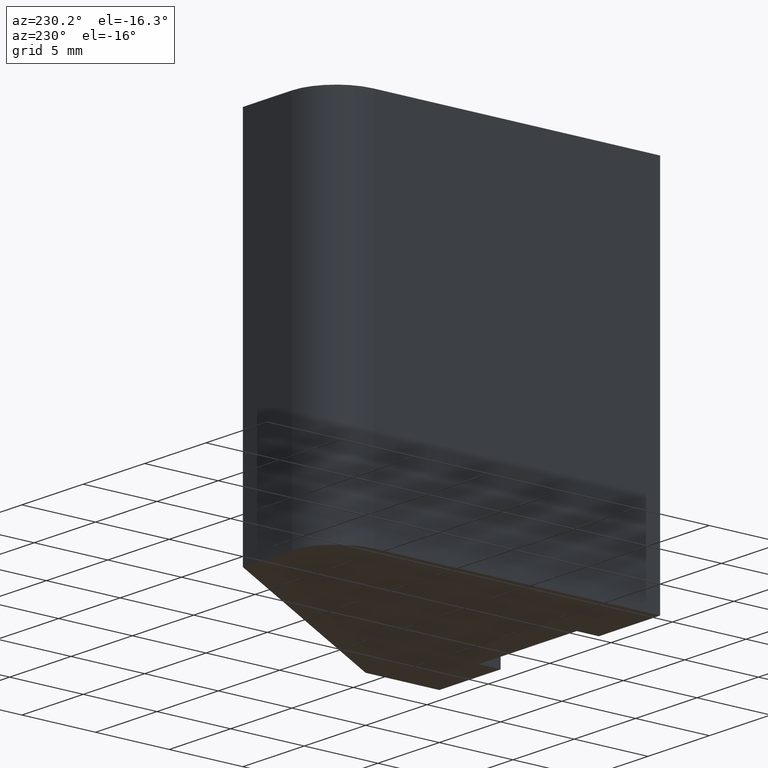
[diagram: clean part render]
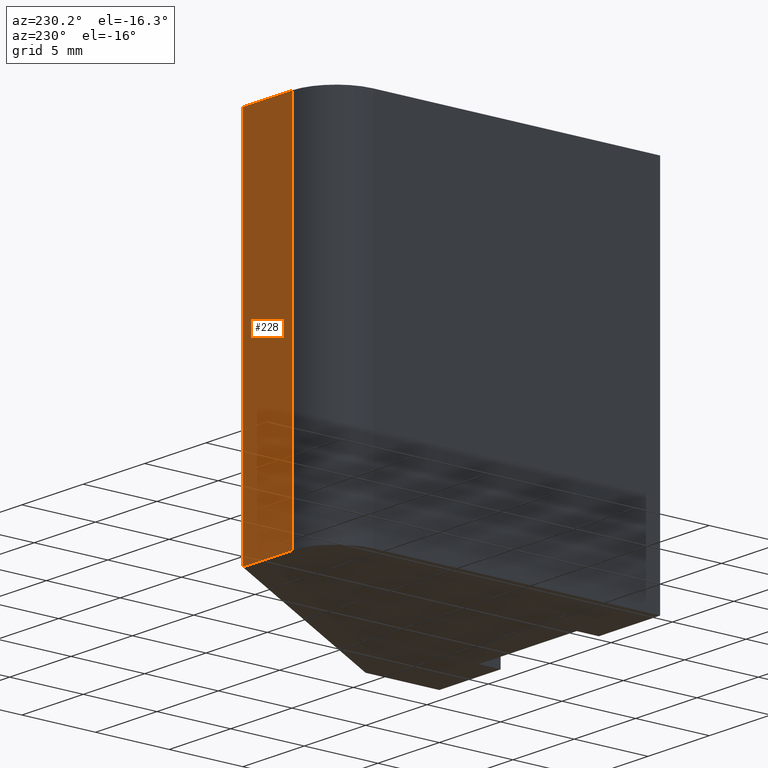
[diagram: same view with one face highlighted and labeled with its STEP entity id]
A machine part, auxiliary view. The second image highlights one B-rep face of the part: STEP entity #228.
In plain terms, the highlighted planar face has unit normal (0, 1, 0).
Its self-contained STEP definition (entity closure, byte-faithful):
#25=FACE_OUTER_BOUND('',#37,.T.);
#37=EDGE_LOOP('',(#184,#185,#186,#187));
#51=LINE('',#345,#79);
#64=LINE('',#372,#92);
#65=LINE('',#375,#93);
#66=LINE('',#376,#94);
#79=VECTOR('',#280,10.);
#92=VECTOR('',#307,10.);
#93=VECTOR('',#310,10.);
#94=VECTOR('',#311,10.);
#108=VERTEX_POINT('',#342);
#109=VERTEX_POINT('',#344);
#116=VERTEX_POINT('',#370);
#117=VERTEX_POINT('',#374);
#128=EDGE_CURVE('',#109,#108,#51,.T.);
#142=EDGE_CURVE('',#116,#108,#64,.T.);
#143=EDGE_CURVE('',#116,#117,#65,.T.);
#144=EDGE_CURVE('',#117,#109,#66,.T.);
#184=ORIENTED_EDGE('',*,*,#143,.T.);
#185=ORIENTED_EDGE('',*,*,#144,.T.);
#186=ORIENTED_EDGE('',*,*,#128,.T.);
#187=ORIENTED_EDGE('',*,*,#142,.F.);
#216=PLANE('',#262);
#228=ADVANCED_FACE('',(#25),#216,.T.);
#262=AXIS2_PLACEMENT_3D('',#373,#308,#309);
#280=DIRECTION('',(-1.,1.11022302462516E-15,0.));
#307=DIRECTION('',(0.,0.,-1.));
#308=DIRECTION('center_axis',(1.11022302462516E-15,1.,0.));
#309=DIRECTION('ref_axis',(0.,0.,1.));
#310=DIRECTION('',(1.,-1.11022302462516E-15,0.));
#311=DIRECTION('',(0.,0.,-1.));
#342=CARTESIAN_POINT('',(-6.,22.5,-12.5));
#344=CARTESIAN_POINT('',(-2.,22.5,-12.5));
#345=CARTESIAN_POINT('',(-6.,22.5,-12.5));
#370=CARTESIAN_POINT('',(-6.,22.5,12.5));
#372=CARTESIAN_POINT('',(-6.,22.5,0.));
#373=CARTESIAN_POINT('Origin',(-6.,22.5,0.));
#374=CARTESIAN_POINT('',(-2.,22.5,12.5));
#375=CARTESIAN_POINT('',(-6.,22.5,12.5));
#376=CARTESIAN_POINT('',(-2.,22.5,0.));